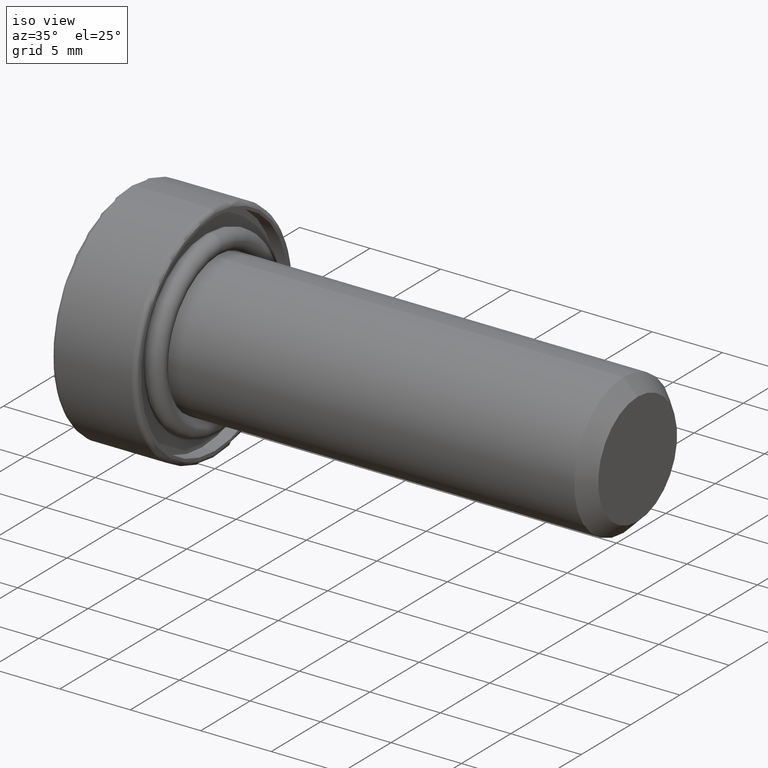
[diagram: clean part render]
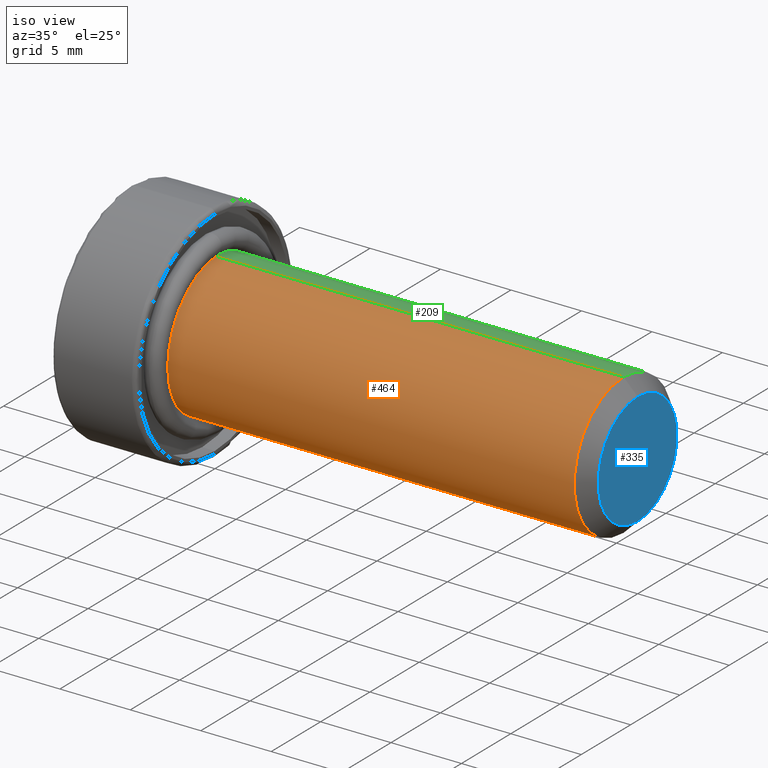
[diagram: same view with three faces highlighted in distinct colors, each labeled with its STEP entity id]
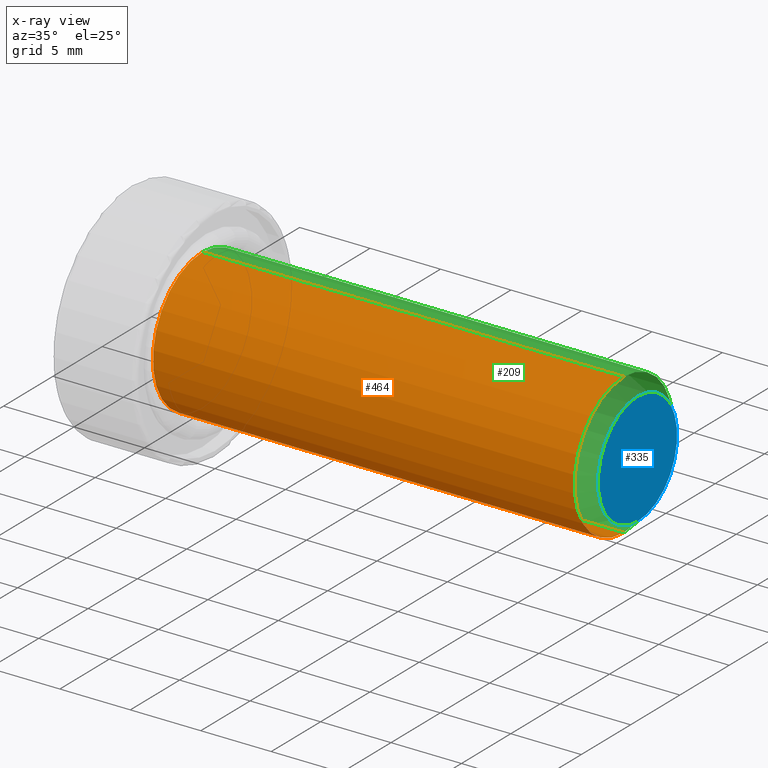
[diagram: x-ray of the same camera — body ghosted, the three highlighted faces saturated]
A machine part, iso view with three faces highlighted in distinct colors.
The next image is the same camera in x-ray (body ghosted, the three faces saturated) — at least one of them is partly hidden behind the body in this view.
Their STEP definitions:

[orange] entity #464 — the highlighted cylindrical surface (partial cylindrical patch) has radius 5 mm, axis along (-1, -0, -0).
#28 = ORIENTED_EDGE ( 'NONE', *, *, #487, .T. ) ;
#86 = LINE ( 'NONE', #720, #236 ) ;
#115 = CARTESIAN_POINT ( 'NONE',  ( -0.9000000000000000200, 6.123233995736766300E-016, -5.000000000000000000 ) ) ;
#145 = CARTESIAN_POINT ( 'NONE',  ( 28.99999999999999300, 0.0000000000000000000, 0.0000000000000000000 ) ) ;
#174 = LINE ( 'NONE', #747, #356 ) ;
#206 = VERTEX_POINT ( 'NONE', #115 ) ;
#207 = DIRECTION ( 'NONE',  ( 0.0000000000000000000, 0.0000000000000000000, -1.000000000000000000 ) ) ;
#220 = DIRECTION ( 'NONE',  ( -1.000000000000000000, -0.0000000000000000000, -0.0000000000000000000 ) ) ;
#236 = VECTOR ( 'NONE', #220, 1000.000000000000000 ) ;
#239 = CARTESIAN_POINT ( 'NONE',  ( 28.99999999999999300, 6.123233995736766300E-016, -5.000000000000000000 ) ) ;
#251 = CARTESIAN_POINT ( 'NONE',  ( 28.99999999999999300, 0.0000000000000000000, 5.000000000000000000 ) ) ;
#268 = DIRECTION ( 'NONE',  ( 0.0000000000000000000, 0.0000000000000000000, 1.000000000000000000 ) ) ;
#273 = EDGE_CURVE ( 'NONE', #294, #358, #174, .T. ) ;
#294 = VERTEX_POINT ( 'NONE', #251 ) ;
#315 = CARTESIAN_POINT ( 'NONE',  ( -0.9000000000000000200, 0.0000000000000000000, 5.000000000000000000 ) ) ;
#324 = DIRECTION ( 'NONE',  ( -1.000000000000000000, -0.0000000000000000000, -0.0000000000000000000 ) ) ;
#340 = CARTESIAN_POINT ( 'NONE',  ( -0.9000000000000000200, 0.0000000000000000000, 0.0000000000000000000 ) ) ;
#341 = AXIS2_PLACEMENT_3D ( 'NONE', #340, #783, #404 ) ;
#349 = ORIENTED_EDGE ( 'NONE', *, *, #629, .F. ) ;
#356 = VECTOR ( 'NONE', #371, 1000.000000000000000 ) ;
#358 = VERTEX_POINT ( 'NONE', #315 ) ;
#371 = DIRECTION ( 'NONE',  ( -1.000000000000000000, -0.0000000000000000000, -0.0000000000000000000 ) ) ;
#384 = CIRCLE ( 'NONE', #656, 5.000000000000000000 ) ;
#404 = DIRECTION ( 'NONE',  ( 0.0000000000000000000, 0.0000000000000000000, -1.000000000000000000 ) ) ;
#415 = CIRCLE ( 'NONE', #341, 5.000000000000000000 ) ;
#432 = EDGE_LOOP ( 'NONE', ( #349, #28, #443, #579 ) ) ;
#443 = ORIENTED_EDGE ( 'NONE', *, *, #273, .T. ) ;
#464 = ADVANCED_FACE ( 'NONE', ( #744 ), #704, .T. ) ;
#487 = EDGE_CURVE ( 'NONE', #775, #294, #384, .T. ) ;
#514 = CARTESIAN_POINT ( 'NONE',  ( 30.00000000000000000, 0.0000000000000000000, 0.0000000000000000000 ) ) ;
#579 = ORIENTED_EDGE ( 'NONE', *, *, #621, .T. ) ;
#583 = DIRECTION ( 'NONE',  ( -1.000000000000000000, 0.0000000000000000000, 0.0000000000000000000 ) ) ;
#614 = AXIS2_PLACEMENT_3D ( 'NONE', #514, #324, #268 ) ;
#621 = EDGE_CURVE ( 'NONE', #358, #206, #415, .T. ) ;
#629 = EDGE_CURVE ( 'NONE', #775, #206, #86, .T. ) ;
#656 = AXIS2_PLACEMENT_3D ( 'NONE', #145, #583, #207 ) ;
#704 = CYLINDRICAL_SURFACE ( 'NONE', #614, 5.000000000000000000 ) ;
#720 = CARTESIAN_POINT ( 'NONE',  ( 30.00000000000000000, 6.123233995736766300E-016, -5.000000000000000000 ) ) ;
#744 = FACE_OUTER_BOUND ( 'NONE', #432, .T. ) ;
#747 = CARTESIAN_POINT ( 'NONE',  ( 30.00000000000000000, 0.0000000000000000000, 5.000000000000000000 ) ) ;
#775 = VERTEX_POINT ( 'NONE', #239 ) ;
#783 = DIRECTION ( 'NONE',  ( 1.000000000000000000, 0.0000000000000000000, 0.0000000000000000000 ) ) ;

[blue] entity #335 — the highlighted planar face has unit normal (1, 0, 0).
#49 = FACE_OUTER_BOUND ( 'NONE', #500, .T. ) ;
#69 = DIRECTION ( 'NONE',  ( 1.000000000000000000, 0.0000000000000000000, 0.0000000000000000000 ) ) ;
#109 = VERTEX_POINT ( 'NONE', #572 ) ;
#122 = DIRECTION ( 'NONE',  ( 1.000000000000000000, 0.0000000000000000000, 0.0000000000000000000 ) ) ;
#126 = AXIS2_PLACEMENT_3D ( 'NONE', #728, #122, #288 ) ;
#132 = EDGE_CURVE ( 'NONE', #798, #109, #275, .T. ) ;
#139 = CIRCLE ( 'NONE', #194, 3.999999999999996400 ) ;
#155 = AXIS2_PLACEMENT_3D ( 'NONE', #563, #69, #502 ) ;
#194 = AXIS2_PLACEMENT_3D ( 'NONE', #571, #196, #638 ) ;
#196 = DIRECTION ( 'NONE',  ( 1.000000000000000000, 0.0000000000000000000, 0.0000000000000000000 ) ) ;
#275 = CIRCLE ( 'NONE', #126, 3.999999999999996400 ) ;
#288 = DIRECTION ( 'NONE',  ( 0.0000000000000000000, 0.0000000000000000000, -1.000000000000000000 ) ) ;
#313 = PLANE ( 'NONE',  #155 ) ;
#335 = ADVANCED_FACE ( 'NONE', ( #49 ), #313, .T. ) ;
#350 = EDGE_CURVE ( 'NONE', #109, #798, #139, .T. ) ;
#359 = CARTESIAN_POINT ( 'NONE',  ( 30.00000000000000000, 5.510910596163086600E-016, -3.999999999999996400 ) ) ;
#422 = ORIENTED_EDGE ( 'NONE', *, *, #350, .T. ) ;
#500 = EDGE_LOOP ( 'NONE', ( #422, #705 ) ) ;
#502 = DIRECTION ( 'NONE',  ( 0.0000000000000000000, 0.0000000000000000000, -1.000000000000000000 ) ) ;
#563 = CARTESIAN_POINT ( 'NONE',  ( 30.00000000000000000, 0.0000000000000000000, 0.0000000000000000000 ) ) ;
#571 = CARTESIAN_POINT ( 'NONE',  ( 30.00000000000000000, 0.0000000000000000000, 0.0000000000000000000 ) ) ;
#572 = CARTESIAN_POINT ( 'NONE',  ( 30.00000000000000000, 0.0000000000000000000, 3.999999999999996400 ) ) ;
#638 = DIRECTION ( 'NONE',  ( 0.0000000000000000000, 0.0000000000000000000, -1.000000000000000000 ) ) ;
#705 = ORIENTED_EDGE ( 'NONE', *, *, #132, .T. ) ;
#728 = CARTESIAN_POINT ( 'NONE',  ( 30.00000000000000000, 0.0000000000000000000, 0.0000000000000000000 ) ) ;
#798 = VERTEX_POINT ( 'NONE', #359 ) ;

[green] entity #209 — the highlighted cylindrical surface (partial cylindrical patch) has radius 5 mm, axis along (-1, -0, -0).
#36 = DIRECTION ( 'NONE',  ( 0.0000000000000000000, 0.0000000000000000000, -1.000000000000000000 ) ) ;
#85 = DIRECTION ( 'NONE',  ( 1.000000000000000000, 0.0000000000000000000, 0.0000000000000000000 ) ) ;
#86 = LINE ( 'NONE', #720, #236 ) ;
#115 = CARTESIAN_POINT ( 'NONE',  ( -0.9000000000000000200, 6.123233995736766300E-016, -5.000000000000000000 ) ) ;
#174 = LINE ( 'NONE', #747, #356 ) ;
#195 = CIRCLE ( 'NONE', #426, 5.000000000000000000 ) ;
#206 = VERTEX_POINT ( 'NONE', #115 ) ;
#209 = ADVANCED_FACE ( 'NONE', ( #378 ), #695, .T. ) ;
#220 = DIRECTION ( 'NONE',  ( -1.000000000000000000, -0.0000000000000000000, -0.0000000000000000000 ) ) ;
#227 = ORIENTED_EDGE ( 'NONE', *, *, #273, .F. ) ;
#236 = VECTOR ( 'NONE', #220, 1000.000000000000000 ) ;
#239 = CARTESIAN_POINT ( 'NONE',  ( 28.99999999999999300, 6.123233995736766300E-016, -5.000000000000000000 ) ) ;
#251 = CARTESIAN_POINT ( 'NONE',  ( 28.99999999999999300, 0.0000000000000000000, 5.000000000000000000 ) ) ;
#273 = EDGE_CURVE ( 'NONE', #294, #358, #174, .T. ) ;
#281 = EDGE_LOOP ( 'NONE', ( #766, #409, #441, #227 ) ) ;
#294 = VERTEX_POINT ( 'NONE', #251 ) ;
#315 = CARTESIAN_POINT ( 'NONE',  ( -0.9000000000000000200, 0.0000000000000000000, 5.000000000000000000 ) ) ;
#356 = VECTOR ( 'NONE', #371, 1000.000000000000000 ) ;
#358 = VERTEX_POINT ( 'NONE', #315 ) ;
#371 = DIRECTION ( 'NONE',  ( -1.000000000000000000, -0.0000000000000000000, -0.0000000000000000000 ) ) ;
#378 = FACE_OUTER_BOUND ( 'NONE', #281, .T. ) ;
#407 = DIRECTION ( 'NONE',  ( -1.000000000000000000, 0.0000000000000000000, 0.0000000000000000000 ) ) ;
#409 = ORIENTED_EDGE ( 'NONE', *, *, #629, .T. ) ;
#424 = CARTESIAN_POINT ( 'NONE',  ( 30.00000000000000000, 0.0000000000000000000, 0.0000000000000000000 ) ) ;
#426 = AXIS2_PLACEMENT_3D ( 'NONE', #788, #407, #36 ) ;
#441 = ORIENTED_EDGE ( 'NONE', *, *, #521, .T. ) ;
#459 = CARTESIAN_POINT ( 'NONE',  ( -0.9000000000000000200, 0.0000000000000000000, 0.0000000000000000000 ) ) ;
#460 = AXIS2_PLACEMENT_3D ( 'NONE', #424, #620, #682 ) ;
#517 = CIRCLE ( 'NONE', #699, 5.000000000000000000 ) ;
#520 = DIRECTION ( 'NONE',  ( 0.0000000000000000000, 0.0000000000000000000, -1.000000000000000000 ) ) ;
#521 = EDGE_CURVE ( 'NONE', #206, #358, #517, .T. ) ;
#620 = DIRECTION ( 'NONE',  ( -1.000000000000000000, -0.0000000000000000000, -0.0000000000000000000 ) ) ;
#629 = EDGE_CURVE ( 'NONE', #775, #206, #86, .T. ) ;
#667 = EDGE_CURVE ( 'NONE', #294, #775, #195, .T. ) ;
#682 = DIRECTION ( 'NONE',  ( 0.0000000000000000000, 0.0000000000000000000, 1.000000000000000000 ) ) ;
#695 = CYLINDRICAL_SURFACE ( 'NONE', #460, 5.000000000000000000 ) ;
#699 = AXIS2_PLACEMENT_3D ( 'NONE', #459, #85, #520 ) ;
#720 = CARTESIAN_POINT ( 'NONE',  ( 30.00000000000000000, 6.123233995736766300E-016, -5.000000000000000000 ) ) ;
#747 = CARTESIAN_POINT ( 'NONE',  ( 30.00000000000000000, 0.0000000000000000000, 5.000000000000000000 ) ) ;
#766 = ORIENTED_EDGE ( 'NONE', *, *, #667, .T. ) ;
#775 = VERTEX_POINT ( 'NONE', #239 ) ;
#788 = CARTESIAN_POINT ( 'NONE',  ( 28.99999999999999300, 0.0000000000000000000, 0.0000000000000000000 ) ) ;